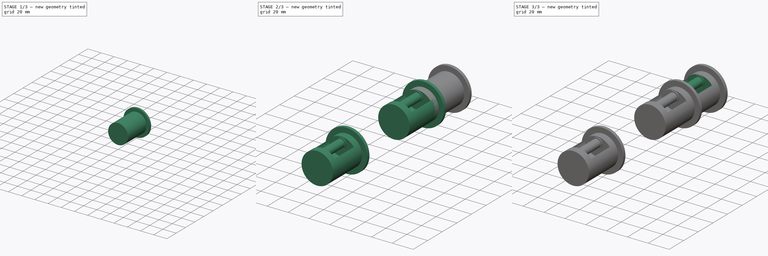
[diagram: build sequence overview — one tinted view per stage of 3, left to right]
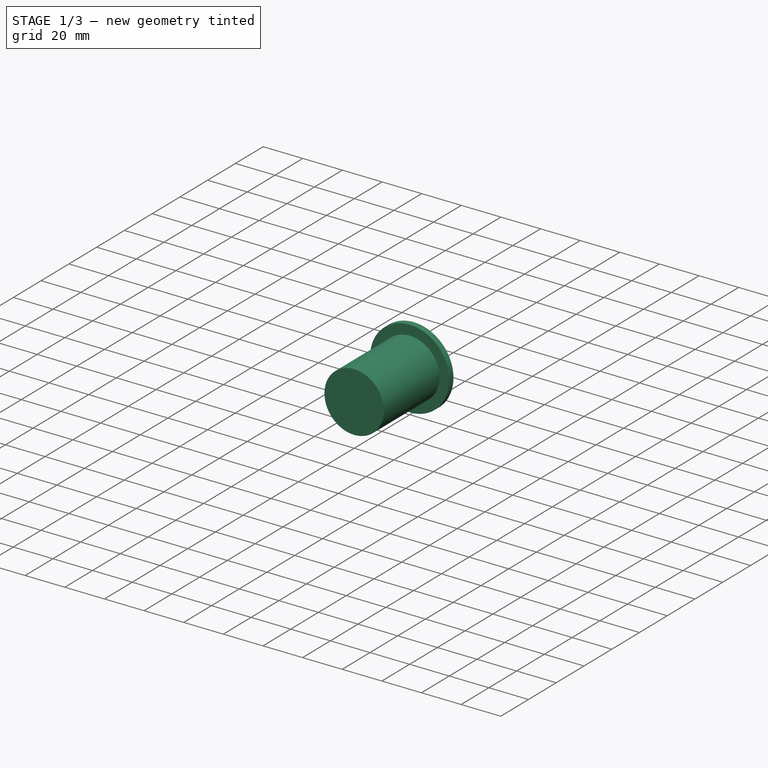
[diagram: stage 1 of 3 — iso view after this stage's code; geometry added in this stage tinted green]
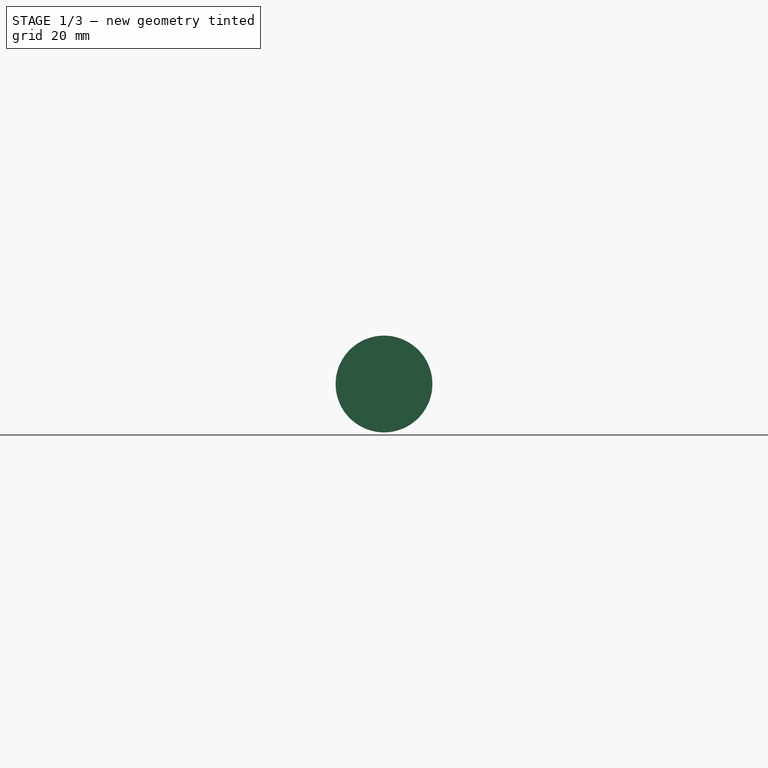
[diagram: stage 1 of 3 — front view after this stage's code; geometry added in this stage tinted green]
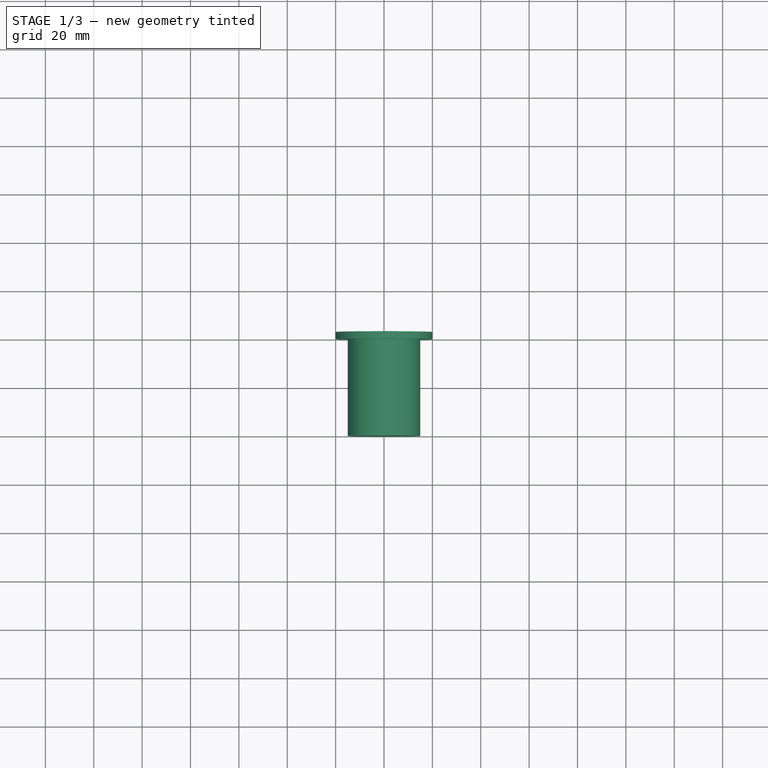
[diagram: stage 1 of 3 — top view after this stage's code; geometry added in this stage tinted green]
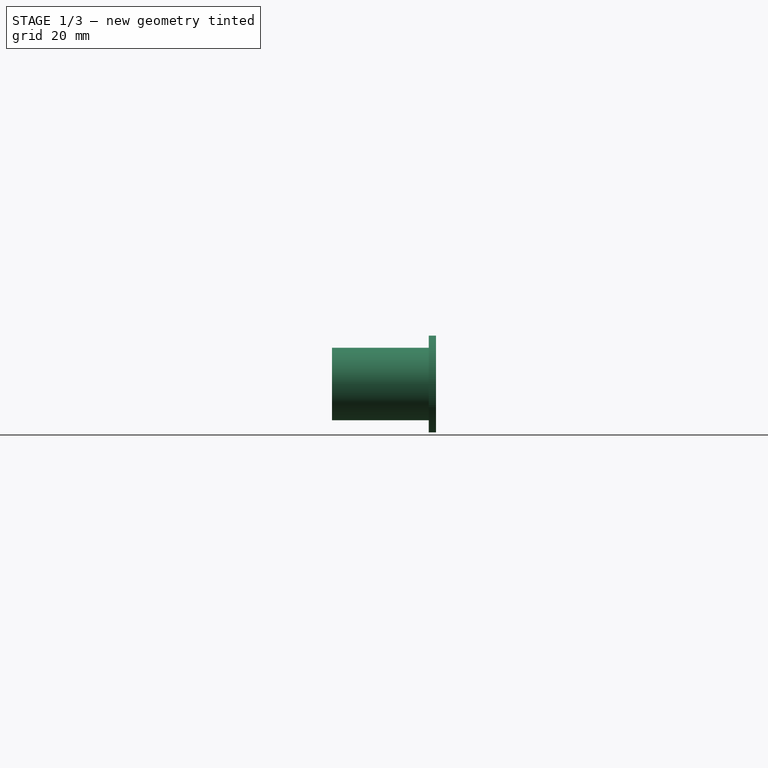
[diagram: stage 1 of 3 — right view after this stage's code; geometry added in this stage tinted green]
FCSTD DOCUMENT  (FreeCAD 0.18R16131 (Git))
Label: support filamentV3
License: All rights reserved
LicenseURL: http://en.wikipedia.org/wiki/All_rights_reserved
objects: Sketcher::SketchObject×7, PartDesign::Body×4, PartDesign::Pad×4, PartDesign::FeatureBase×2, PartDesign::Pocket×2
note: 25 computed .brp shape members not serialized (recipe doc carries the construction recipe); baked Part::Feature solids carry a one-line shape summary decoded from their .brp

FEATURE [PartDesign::Body] Body003
  Group = -> [Clone001]
  Origin = -> Origin003
  Placement = pos=(0,70,0) rot=(0,0,1;0rad)
  Tip = -> Clone001
FEATURE [PartDesign::Pad] Pad004
  Length = 3
  Length2 = 100
  Placement = pos=(0,0,0) rot=(1,0,0;1.5708rad)
  Profile = -> Sketch002
  Reversed = true
  Type = 0
FEATURE [Sketcher::SketchObject] Sketch006
  AttachmentOffset = pos=(0,0,15) rot=(0,0,1;0rad)
  MapMode = 5
  Placement = pos=(0,-15,3.3e-15) rot=(1,0,0;1.5708rad)
  Support = -> [XZ_Plane004]
  sketch-geometry (1):
    g0: Circle CenterX=0 CenterY=9.48444 CenterZ=0 NormalX=0 NormalY=0 NormalZ=1 AngleXU=0 Radius=4
  constraints (2):
    c: PointOnObject(g0,g-2)
    c: Diameter(g0) = 8
FEATURE [PartDesign::Pocket] Pocket001
  BaseFeature = -> Pad004
  Length = 8
  Length2 = 100
  Placement = pos=(0,0,0) rot=(1,0,0;1.5708rad)
  Profile = -> Sketch006
  Type = 0
FEATURE [PartDesign::Pad] Pad  label="Pad axe p"
  BaseFeature = -> Pocket001
  Length = 40
  Length2 = 100
  Placement = pos=(0,0,0) rot=(1,0,0;1.5708rad)
  Profile = -> Sketch001
  Type = 0
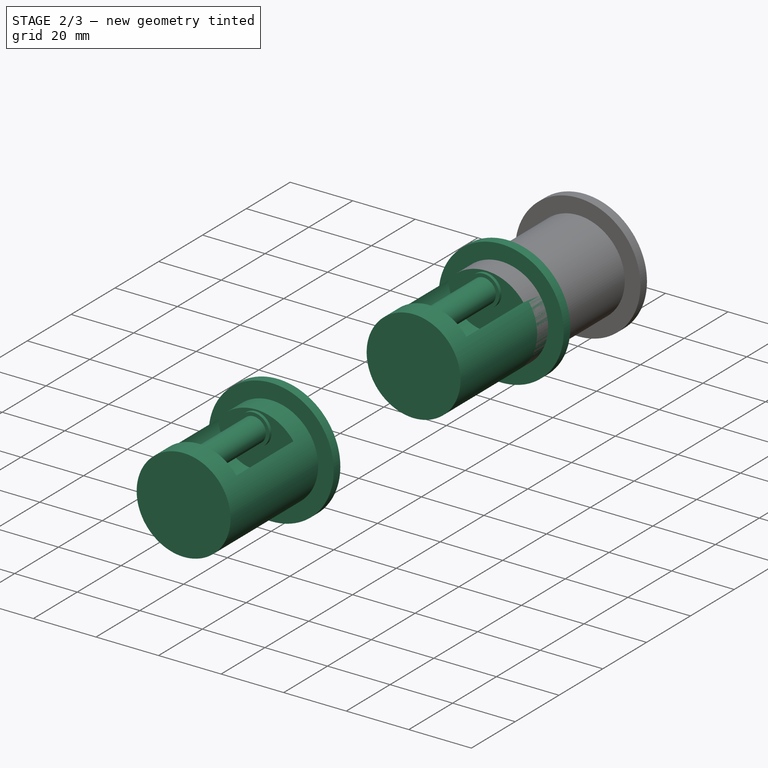
[diagram: stage 2 of 3 — iso view after this stage's code; geometry added in this stage tinted green]
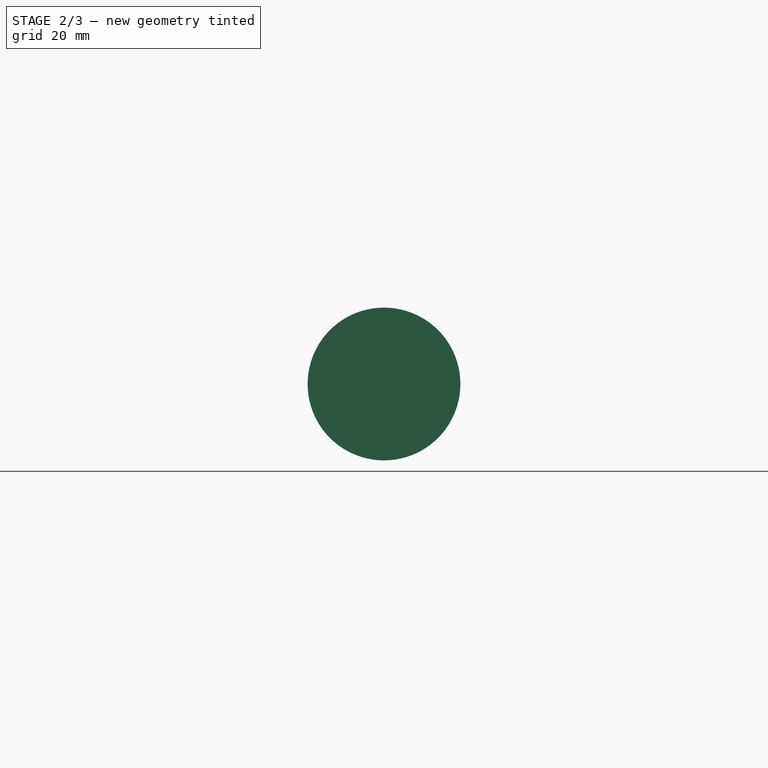
[diagram: stage 2 of 3 — front view after this stage's code; geometry added in this stage tinted green]
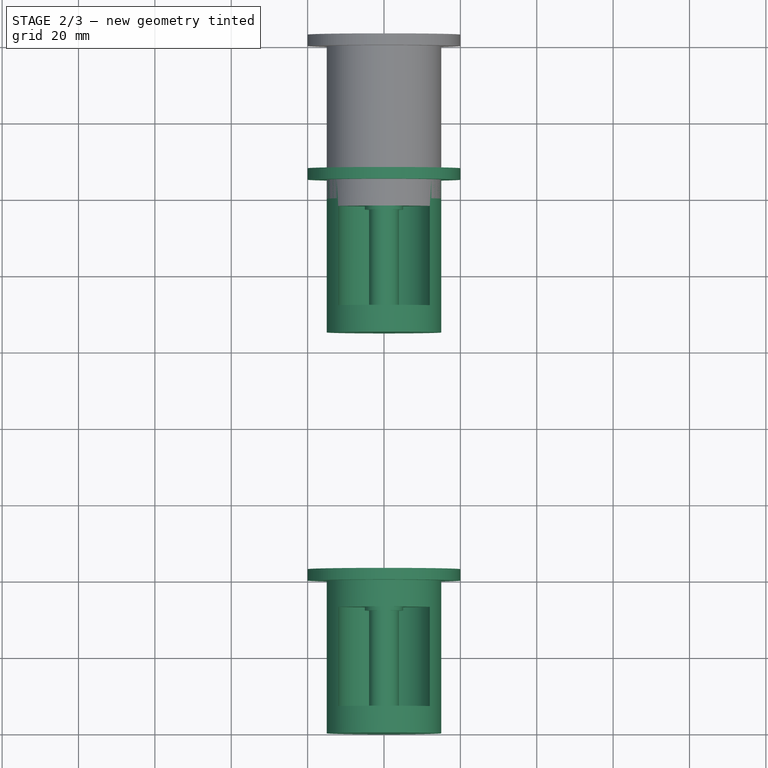
[diagram: stage 2 of 3 — top view after this stage's code; geometry added in this stage tinted green]
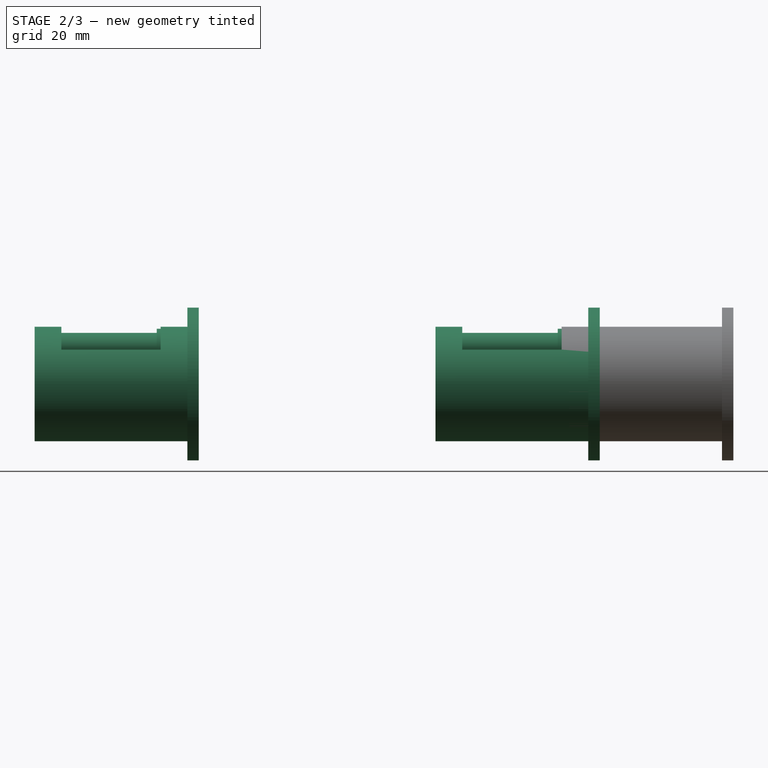
[diagram: stage 2 of 3 — right view after this stage's code; geometry added in this stage tinted green]
FEATURE [Sketcher::SketchObject] Sketch  label="dim"
  sketch-geometry (21):
    g0: Circle [constr] CenterX=0 CenterY=0 CenterZ=0 NormalX=0 NormalY=0 NormalZ=1 AngleXU=0 Radius=30
    g1: Circle [constr] CenterX=33.0664 CenterY=41.6821 CenterZ=0 NormalX=0 NormalY=0 NormalZ=1 AngleXU=0 Radius=4
    g2: LineSegment [constr] StartX=-48.4552 StartY=14.4461 StartZ=0 EndX=-37.1183 EndY=14.4461 EndZ=0
    g3: LineSegment [constr] StartX=-37.1183 StartY=14.4461 StartZ=0 EndX=-37.1183 EndY=-45.5539 EndZ=0
    g4: LineSegment [constr] StartX=-37.1183 StartY=-45.5539 StartZ=0 EndX=-48.4552 EndY=-45.5539 EndZ=0
    g5: LineSegment [constr] StartX=-48.4552 StartY=-45.5539 StartZ=0 EndX=-48.4552 EndY=14.4461 EndZ=0
    g6: Circle [constr] CenterX=0 CenterY=0 CenterZ=0 NormalX=0 NormalY=0 NormalZ=1 AngleXU=0 Radius=35
    g7: Circle [constr] CenterX=0 CenterY=0 CenterZ=0 NormalX=0 NormalY=0 NormalZ=1 AngleXU=0 Radius=0.755621
    g8: Circle [constr] CenterX=0 CenterY=0 CenterZ=0 NormalX=0 NormalY=0 NormalZ=1 AngleXU=0 Radius=25
    g9: LineSegment [constr] StartX=-79.7336 StartY=6.30954 StartZ=0 EndX=-56.2028 EndY=6.30954 EndZ=0
    g10: LineSegment [constr] StartX=-56.2028 StartY=6.30954 StartZ=0 EndX=-56.2028 EndY=-38.6905 EndZ=0
    g11: LineSegment [constr] StartX=-56.2028 StartY=-38.6905 StartZ=0 EndX=-79.7336 EndY=-38.6905 EndZ=0
    g12: LineSegment [constr] StartX=-79.7336 StartY=-38.6905 StartZ=0 EndX=-79.7336 EndY=6.30954 EndZ=0
    g13: Circle [constr] CenterX=-12 CenterY=0 CenterZ=0 NormalX=0 NormalY=0 NormalZ=1 AngleXU=0 Radius=0.5
    g14: Circle [constr] CenterX=12 CenterY=0 CenterZ=0 NormalX=0 NormalY=0 NormalZ=1 AngleXU=0 Radius=0.5
    g15: Circle [constr] CenterX=33.0664 CenterY=41.6821 CenterZ=0 NormalX=0 NormalY=0 NormalZ=1 AngleXU=0 Radius=11
    g16: LineSegment [constr] StartX=47.4268 StartY=51.2981 StartZ=0 EndX=54.4268 EndY=51.2981 EndZ=0
    g17: LineSegment [constr] StartX=54.4268 StartY=51.2981 StartZ=0 EndX=54.4268 EndY=30.0584 EndZ=0
    g18: LineSegment [constr] StartX=54.4268 StartY=30.0584 StartZ=0 EndX=47.4268 EndY=30.0584 EndZ=0
    g19: LineSegment [constr] StartX=47.4268 StartY=30.0584 StartZ=0 EndX=47.4268 EndY=51.2981 EndZ=0
    g20: Circle [constr] CenterX=0 CenterY=0 CenterZ=0 NormalX=0 NormalY=0 NormalZ=1 AngleXU=0 Radius=14
  constraints (41):
    c: Diameter(g0) = 60
    c: Diameter(g1) = 8
    c: Coincident(g2,g3)
    c: Coincident(g3,g4)
    c: Coincident(g4,g5)
    c: Coincident(g5,g2)
    c: Horizontal(g2)
    c: Horizontal(g4)
    c: Vertical(g3)
    c: Vertical(g5)
    c: DistanceY(g3,g3) = 60
    c: Diameter(g6) = 70
    c: Coincident(g8,g-1)
    c: Diameter(g8) = 50
    c: Coincident(g9,g10)
    c: Coincident(g10,g11)
    c: Coincident(g11,g12)
    c: Coincident(g12,g9)
    c: Horizontal(g9)
    c: Horizontal(g11)
    c: Vertical(g10)
    c: Vertical(g12)
    c: DistanceY(g12,g12) = 45
    c: PointOnObject(g13,g-1)
    c: DistanceX(g13,g14) = 24
    c: Symmetric(g13,g14,g-2)
    c: Diameter(g13) = 1
    c: Diameter(g14) = 1
    c: Coincident(g15,g1)
    c: Diameter(g15) = 22
    c: Coincident(g16,g17)
    c: Coincident(g17,g18)
    c: Coincident(g18,g19)
    c: Coincident(g19,g16)
    c: Horizontal(g16)
    c: Horizontal(g18)
    c: Vertical(g17)
    c: Vertical(g19)
    c: DistanceX(g18,g18) = 7
    c: Coincident(g20,g-1)
    c: Diameter(g20) = 28
FEATURE [Sketcher::SketchObject] Sketch001  label="axe principal"
  MapMode = 5
  Placement = pos=(0,0,0) rot=(1,0,0;1.5708rad)
  Support = -> [XZ_Plane004]
  sketch-geometry (1):
    g0: Circle CenterX=0 CenterY=0 CenterZ=0 NormalX=0 NormalY=0 NormalZ=1 AngleXU=0 Radius=15
  constraints (2):
    c: Coincident(g0,g-1)
    c: Diameter(g0) = 30
FEATURE [Sketcher::SketchObject] Sketch002  label="butee"
  ExternalGeometry = -> [Sketch001]
  MapMode = 5
  Placement = pos=(0,0,0) rot=(1,0,0;1.5708rad)
  Support = -> [XZ_Plane004]
  sketch-geometry (3):
    g0: Circle CenterX=0 CenterY=0 CenterZ=0 NormalX=0 NormalY=0 NormalZ=1 AngleXU=0 Radius=20
    g1: GeomPoint X=15 Y=0 Z=0
    g2: GeomPoint X=20 Y=0 Z=0
  constraints (5):
    c: Coincident(g0,g-1)
    c: PointOnObject(g1,g-3)
    c: PointOnObject(g1,g-1)
    c: PointOnObject(g2,g0)
    c: PointOnObject(g2,g-1)
FEATURE [Sketcher::SketchObject] Sketch003  label="emplacement roulement"
  AttachmentOffset = pos=(0,0,7) rot=(0,0,1;0rad)
  MapMode = 5
  Placement = pos=(0,-7,-1.6e-15) rot=(1,0,0;1.5708rad)
  sketch-geometry (1):
    g0: Circle CenterX=0 CenterY=9.4841 CenterZ=0 NormalX=0 NormalY=0 NormalZ=1 AngleXU=0 Radius=12
  constraints (2):
    c: PointOnObject(g0,g-2)
    c: Diameter(g0) = 24
FEATURE [Sketcher::SketchObject] Sketch004  label="axe roulement"
  AttachmentOffset = pos=(0,0,7) rot=(0,0,1;0rad)
  ExternalGeometry = -> [Sketch003]
  MapMode = 5
  Placement = pos=(0,-7,-1.6e-15) rot=(1,0,0;1.5708rad)
  sketch-geometry (2):
    g0: Circle CenterX=0 CenterY=9.4841 CenterZ=0 NormalX=0 NormalY=0 NormalZ=1 AngleXU=0 Radius=3.9
    g1: GeomPoint X=0 Y=-2.5159 Z=0
  constraints (4):
    c: Diameter(g0) = 7.8
    c: PointOnObject(g1,g-3)
    c: PointOnObject(g1,g-2)
    c: Coincident(g0,g-3)
FEATURE [Sketcher::SketchObject] Sketch005  label="butee roul"
  AttachmentOffset = pos=(0,0,7) rot=(0,0,1;0rad)
  ExternalGeometry = -> [Sketch004]
  MapMode = 5
  Placement = pos=(0,-7,-1.6e-15) rot=(1,0,0;1.5708rad)
  sketch-geometry (1):
    g0: Circle CenterX=0 CenterY=9.4841 CenterZ=0 NormalX=0 NormalY=0 NormalZ=1 AngleXU=0 Radius=5
  constraints (2):
    c: Coincident(g0,g-3)
    c: Diameter(g0) = 10
FEATURE [PartDesign::FeatureBase] Clone
  Placement = pos=(0,-35,0) rot=(0,0,1;0rad)
FEATURE [PartDesign::Body] Body002
  Group = -> [Clone]
  Origin = -> Origin002
  Tip = -> Clone
FEATURE [PartDesign::FeatureBase] Clone001
  Placement = pos=(0,-140,0) rot=(0,0,1;0rad)
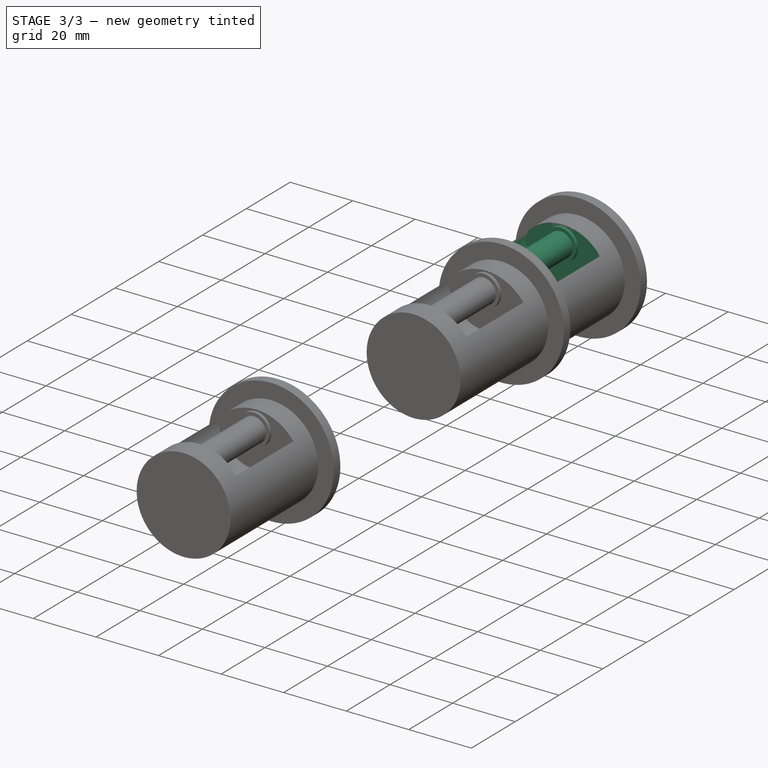
[diagram: stage 3 of 3 — iso view after this stage's code; geometry added in this stage tinted green]
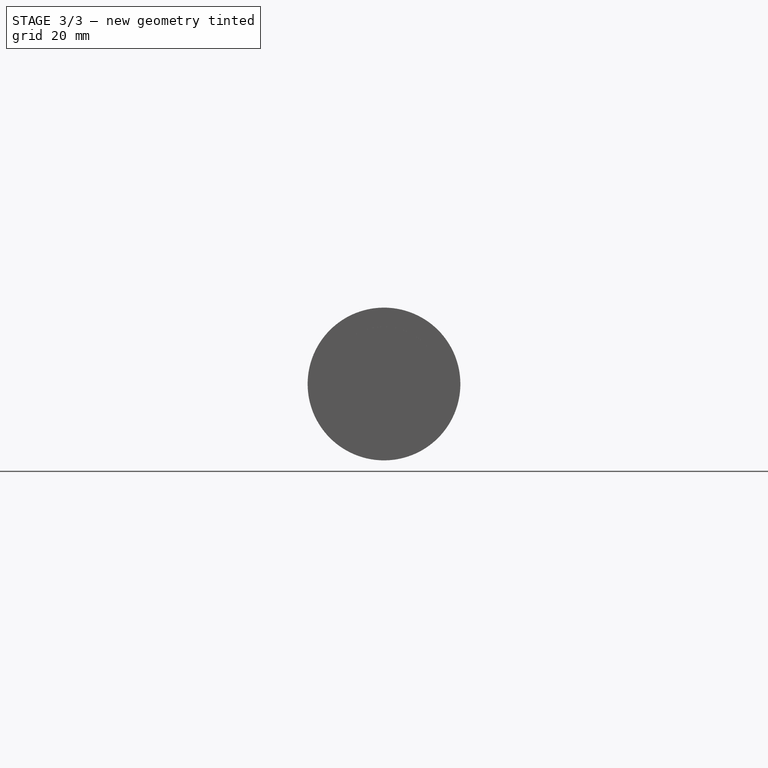
[diagram: stage 3 of 3 — front view after this stage's code; geometry added in this stage tinted green]
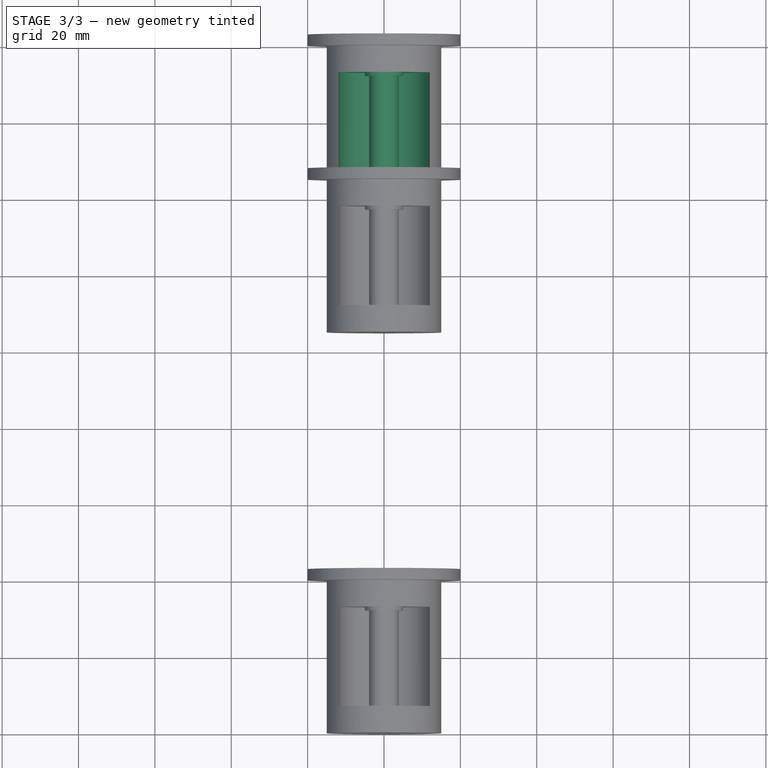
[diagram: stage 3 of 3 — top view after this stage's code; geometry added in this stage tinted green]
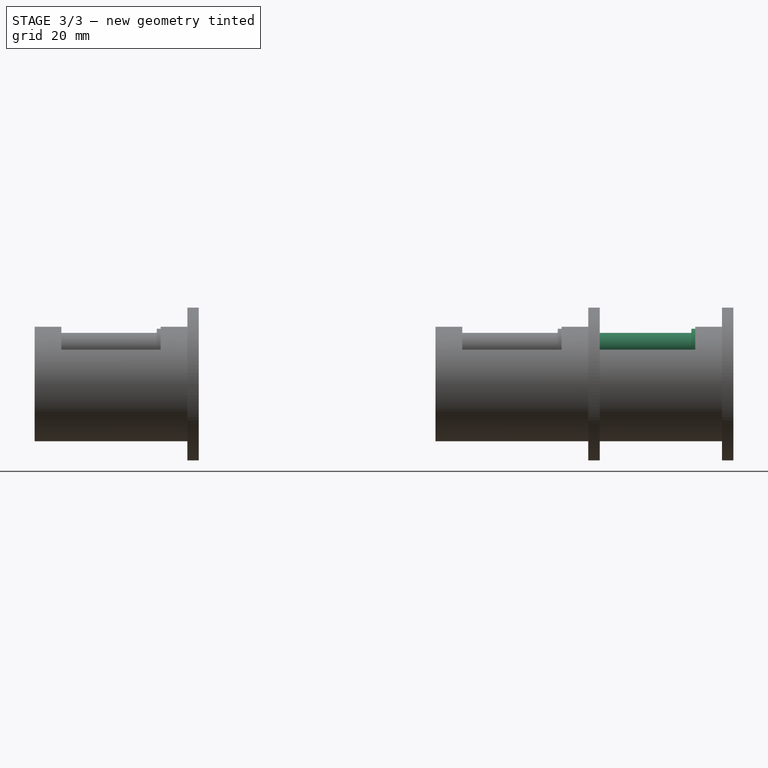
[diagram: stage 3 of 3 — right view after this stage's code; geometry added in this stage tinted green]
FEATURE [PartDesign::Pocket] Pocket  label="Pocket emp roul"
  BaseFeature = -> Pad
  Length = 26
  Length2 = 100
  Placement = pos=(0,0,0) rot=(1,0,0;1.5708rad)
  Profile = -> Sketch003
  Reversed = true
  Type = 0
FEATURE [PartDesign::Pad] Pad002  label="Pad axe roul"
  BaseFeature = -> Pocket
  Length = 10
  Length2 = 100
  Placement = pos=(0,0,0) rot=(1,0,0;1.5708rad)
  Profile = -> Sketch004
  Type = 2
FEATURE [PartDesign::Pad] Pad003  label="Pad butee roul"
  BaseFeature = -> Pad002
  Length = 1
  Length2 = 100
  Placement = pos=(0,0,0) rot=(1,0,0;1.5708rad)
  Profile = -> Sketch005
  Type = 0
FEATURE [PartDesign::Body] Body004
  Group = -> [Sketch002,Pad004,Sketch006,Pocket001,Sketch001,Pad]
  Origin = -> Origin004
  Tip = -> Pad
FEATURE [PartDesign::Body] Body
  Origin = -> Origin
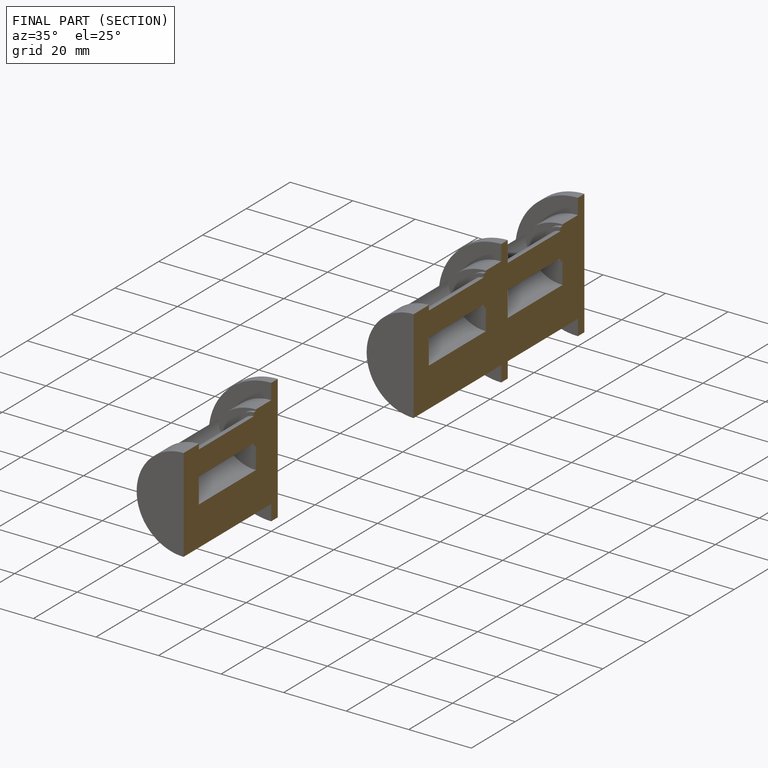
[diagram: finished part — half-section view (interior)]
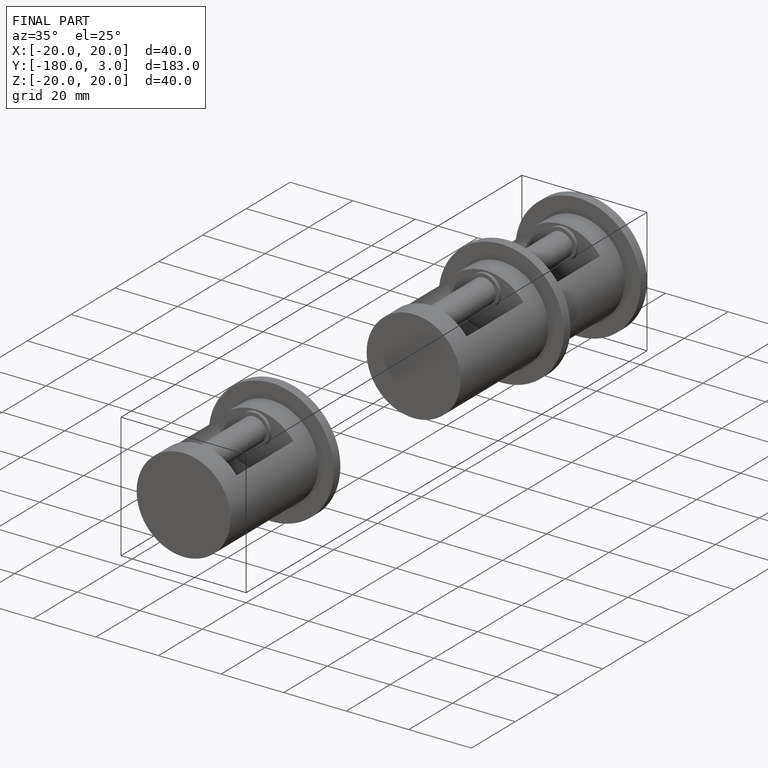
[diagram: finished part — iso view with bounding-box wireframe]
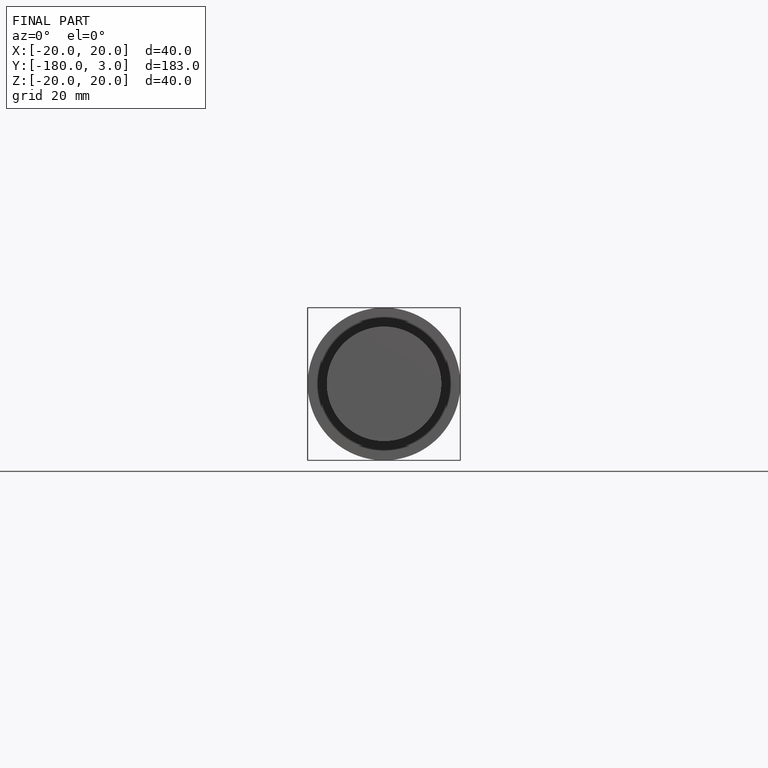
[diagram: finished part — front view with bounding-box wireframe]
